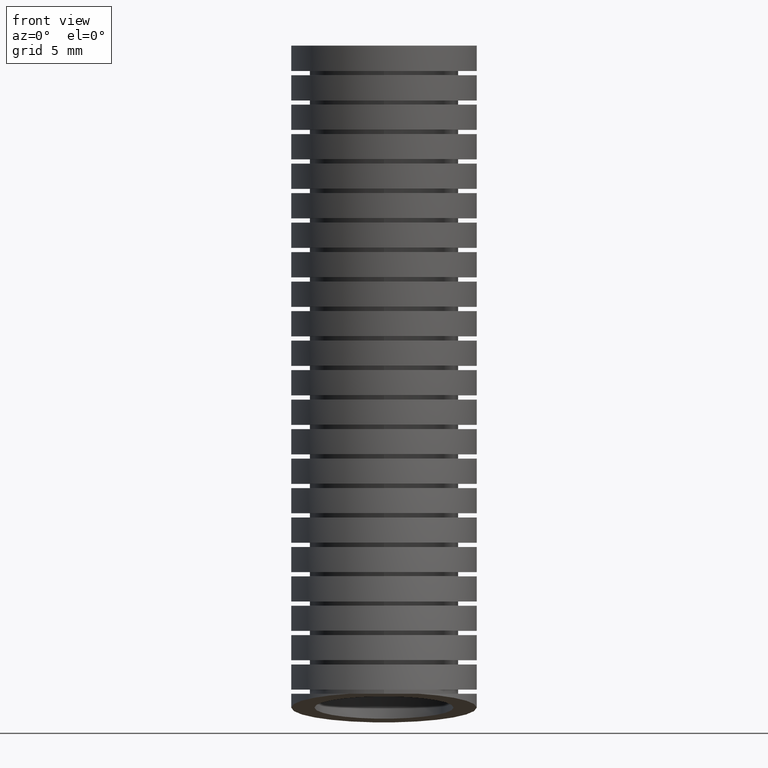
[diagram: clean part render]
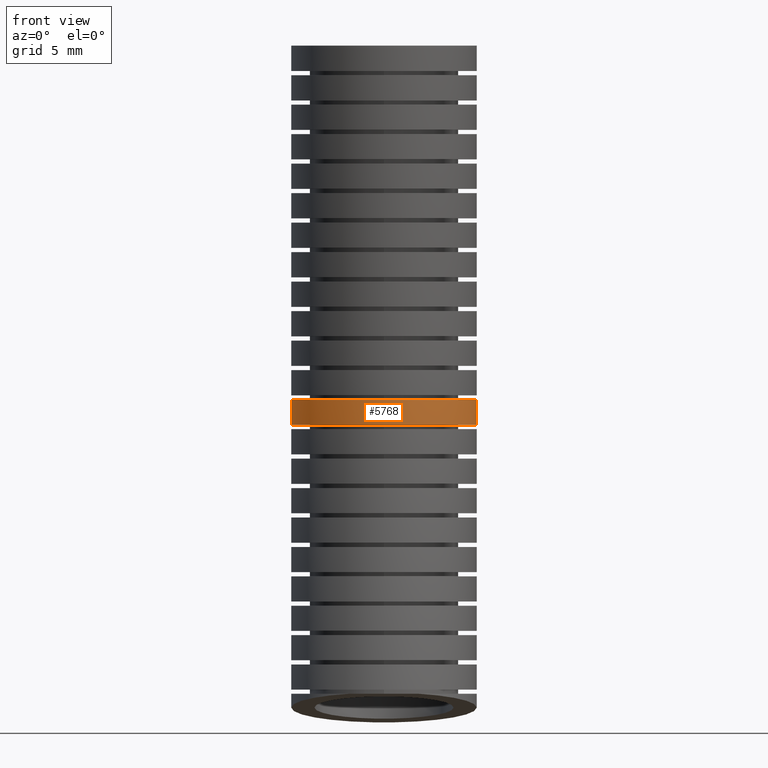
[diagram: same view with one face highlighted and labeled with its STEP entity id]
A machine part, front view. The second image highlights one B-rep face of the part: STEP entity #5768.
In plain terms, the highlighted face is a freeform B-spline surface patch.
Its self-contained STEP definition (entity closure, byte-faithful):
#5536 = ORIENTED_EDGE ( 'NONE', *, *, #5537, .T. ) ;
#5537 = EDGE_CURVE ( 'NONE', #5769, #5770, #6665, .T. ) ;
#5538 = ORIENTED_EDGE ( 'NONE', *, *, #5602, .F. ) ;
#5596 = EDGE_LOOP ( 'NONE', ( #5763, #5599, #5536, #5538 ) ) ;
#5598 = VERTEX_POINT ( 'NONE', #7152 ) ;
#5599 = ORIENTED_EDGE ( 'NONE', *, *, #5600, .T. ) ;
#5600 = EDGE_CURVE ( 'NONE', #5767, #5769, #7101, .T. ) ;
#5602 = EDGE_CURVE ( 'NONE', #5598, #5770, #7265, .T. ) ;
#5763 = ORIENTED_EDGE ( 'NONE', *, *, #5766, .T. ) ;
#5766 = EDGE_CURVE ( 'NONE', #5598, #5767, #9093, .T. ) ;
#5767 = VERTEX_POINT ( 'NONE', #9092 ) ;
#5768 = ADVANCED_FACE ( 'NONE', ( #9133 ), #9041, .T. ) ;
#5769 = VERTEX_POINT ( 'NONE', #9318 ) ;
#5770 = VERTEX_POINT ( 'NONE', #9317 ) ;
#6513 = CARTESIAN_POINT ( 'NONE',  ( -0.1908391727205746600, -0.08642029612144958000, -0.8995019102547113800 ) ) ;
#6514 = CARTESIAN_POINT ( 'NONE',  ( -0.1976465787443406300, -0.07375096096106040200, -0.8995019102547109300 ) ) ;
#6515 = CARTESIAN_POINT ( 'NONE',  ( -0.2087777214159124700, -0.04694139336656387400, -0.8995019102547110500 ) ) ;
#6516 = CARTESIAN_POINT ( 'NONE',  ( -0.2129374929820456700, -0.03320780768433455300, -0.8995019102547109300 ) ) ;
#6517 = CARTESIAN_POINT ( 'NONE',  ( -0.2185516004126545300, -0.005107863162842447700, -0.8995019102547111600 ) ) ;
#6518 = CARTESIAN_POINT ( 'NONE',  ( -0.2200000000000000600, 0.009381708051706686600, -0.8995019102547111600 ) ) ;
#6519 = CARTESIAN_POINT ( 'NONE',  ( -0.2200000000000000000, 0.02386124835216906300, -0.8995019102547111600 ) ) ;
#6524 = CARTESIAN_POINT ( 'NONE',  ( 0.2199999999999999700, 0.02386124834141227800, -0.8995019104416789300 ) ) ;
#6525 = CARTESIAN_POINT ( 'NONE',  ( 0.2199999999999999700, 0.009335042488400958600, -0.8995019104416789300 ) ) ;
#6526 = CARTESIAN_POINT ( 'NONE',  ( 0.2185540854276715500, -0.005086124097520516900, -0.8995019102547123800 ) ) ;
#6527 = CARTESIAN_POINT ( 'NONE',  ( 0.2129459420463962700, -0.03317480096830654300, -0.8995019102547126000 ) ) ;
#6528 = CARTESIAN_POINT ( 'NONE',  ( 0.2087652145117081800, -0.04697486230115539100, -0.8995019102547114900 ) ) ;
#6531 = CARTESIAN_POINT ( 'NONE',  ( 0.07085032347168560000, -0.1847085350548554300, -0.8995019102547110500 ) ) ;
#6532 = CARTESIAN_POINT ( 'NONE',  ( 0.05713245578302185400, -0.1888774132028441000, -0.8995019102547119300 ) ) ;
#6533 = CARTESIAN_POINT ( 'NONE',  ( 0.02872972691927452500, -0.1945232565066299100, -0.8995019102547117100 ) ) ;
#6534 = CARTESIAN_POINT ( 'NONE',  ( 0.01433739082891552700, -0.1959246846892287500, -0.8995019102547120400 ) ) ;
#6535 = CARTESIAN_POINT ( 'NONE',  ( -0.007142840114660905000, -0.1959263660618468500, -0.8995019102547120400 ) ) ;
#6536 = CARTESIAN_POINT ( 'NONE',  ( -0.01430553339018932800, -0.1955785595210073900, -0.8995019102547114900 ) ) ;
#6537 = CARTESIAN_POINT ( 'NONE',  ( -0.02863623993025464800, -0.1941745748405809300, -0.8995019102547117100 ) ) ;
#6538 = CARTESIAN_POINT ( 'NONE',  ( -0.03584388835235817500, -0.1931090619189149700, -0.8995019102547120400 ) ) ;
#6539 = CARTESIAN_POINT ( 'NONE',  ( -0.05710071395382855500, -0.1888838315426511800, -0.8995019102547120400 ) ) ;
#6540 = CARTESIAN_POINT ( 'NONE',  ( 0.1976441659385130800, -0.07375342193802907100, -0.8995019102547114900 ) ) ;
#6541 = CARTESIAN_POINT ( 'NONE',  ( 0.1908573820943851600, -0.08638968317247848500, -0.8995019102547119300 ) ) ;
#6542 = CARTESIAN_POINT ( 'NONE',  ( 0.1789017251322816400, -0.1042537917086575800, -0.8995019102547119300 ) ) ;
#6543 = CARTESIAN_POINT ( 'NONE',  ( 0.1746184241172244700, -0.1100254490438053000, -0.8995019102547114900 ) ) ;
#6544 = CARTESIAN_POINT ( 'NONE',  ( 0.1654400954681575200, -0.1211931160711812600, -0.8995019102547116000 ) ) ;
#6545 = CARTESIAN_POINT ( 'NONE',  ( 0.1605432179055268400, -0.1265831826717213900, -0.8995019102547117100 ) ) ;
#6546 = CARTESIAN_POINT ( 'NONE',  ( 0.1452575287904051300, -0.1418315545017988000, -0.8995019102547119300 ) ) ;
#6547 = CARTESIAN_POINT ( 'NONE',  ( 0.1341796732697694600, -0.1509051810582084900, -0.8995019102547113800 ) ) ;
#6548 = CARTESIAN_POINT ( 'NONE',  ( 0.1102542576823396800, -0.1668747853066037700, -0.8995019102547114900 ) ) ;
#6549 = CARTESIAN_POINT ( 'NONE',  ( 0.09734731283204464700, -0.1737575009706235900, -0.8995019102547110500 ) ) ;
#6665 = B_SPLINE_CURVE_WITH_KNOTS ( 'NONE', 3,
 ( #6519, #6518, #6517, #6516, #6515, #6514, #6513, #6675, #6674, #6673, #6672, #6671, #6670, #6669, #6668, #6667, #6539, #6538, #6537, #6536, #6535, #6534, #6533, #6532, #6531, #6549, #6548, #6547, #6546, #6545, #6544, #6543, #6542, #6541, #6540, #6528, #6527, #6526, #6525, #6524 ),
 .UNSPECIFIED., .F., .F.,
 ( 4, 2, 2, 2, 2, 2, 2, 2, 2, 2, 2, 2, 2, 2, 2, 2, 2, 2, 2, 4 ),
 ( 0.01745942032408949500, 0.01855060052160106800, 0.01964178071911264200, 0.02073296091662421600, 0.02127855101538000600, 0.02182414111413579300, 0.02291532131164737000, 0.02400650150915895100, 0.02509768170667053100, 0.02564327180542631800, 0.02618886190418210800, 0.02728004210169368900, 0.02837122229920527000, 0.02946240249671684700, 0.03055358269422842700, 0.03109917279298421800, 0.03164476289174000800, 0.03273594308925158900, 0.03382712328676316900, 0.03491830348427474300 ),
 .UNSPECIFIED. ) ;
#6667 = CARTESIAN_POINT ( 'NONE',  ( -0.07081188543121451400, -0.1847224059056946900, -0.8995019102547120400 ) ) ;
#6668 = CARTESIAN_POINT ( 'NONE',  ( -0.09733298570860519900, -0.1737654336145183200, -0.8995019102547117100 ) ) ;
#6669 = CARTESIAN_POINT ( 'NONE',  ( -0.1102518815458860100, -0.1668747548369425300, -0.8995019102547110500 ) ) ;
#6670 = CARTESIAN_POINT ( 'NONE',  ( -0.1341478153754296900, -0.1509280595554253800, -0.8995019102547111600 ) ) ;
#6671 = CARTESIAN_POINT ( 'NONE',  ( -0.1452315637308490600, -0.1418564883681085700, -0.8995019102547117100 ) ) ;
#6672 = CARTESIAN_POINT ( 'NONE',  ( -0.1605451077698319100, -0.1265817807976659700, -0.8995019102547120400 ) ) ;
#6673 = CARTESIAN_POINT ( 'NONE',  ( -0.1654482042918647700, -0.1211831434430037800, -0.8995019102547122700 ) ) ;
#6674 = CARTESIAN_POINT ( 'NONE',  ( -0.1746077039754614400, -0.1100385989446233400, -0.8995019102547123800 ) ) ;
#6675 = CARTESIAN_POINT ( 'NONE',  ( -0.1788865639006709800, -0.1042747381107451400, -0.8995019102547116000 ) ) ;
#7099 = CARTESIAN_POINT ( 'NONE',  ( -0.2200000000000000000, 0.02501423798455343000, -0.8532126102779287200 ) ) ;
#7100 = CARTESIAN_POINT ( 'NONE',  ( -0.2200000000000000000, 0.02526123312104128900, -0.8395213919809375600 ) ) ;
#7101 = B_SPLINE_CURVE_WITH_KNOTS ( 'NONE', 3,
 ( #7100, #7099, #7243, #7242, #7241 ),
 .UNSPECIFIED., .F., .F.,
 ( 4, 1, 4 ),
 ( 0.5338393789799112900, 0.5600000000000000500, 0.5720489863247842900 ),
 .UNSPECIFIED. ) ;
#7152 = CARTESIAN_POINT ( 'NONE',  ( 0.2199999999999999700, 0.02526123312796665200, -0.8395213917889967600 ) ) ;
#7241 = CARTESIAN_POINT ( 'NONE',  ( -0.2200000000000000000, 0.02386124835216906300, -0.8995019102547111600 ) ) ;
#7242 = CARTESIAN_POINT ( 'NONE',  ( -0.2200000000000000000, 0.02404257960003855800, -0.8931983281939248600 ) ) ;
#7243 = CARTESIAN_POINT ( 'NONE',  ( -0.2200000000000000000, 0.02458266239579632100, -0.8732073009364621500 ) ) ;
#7256 = CARTESIAN_POINT ( 'NONE',  ( 0.2199999999999999700, 0.02386124834141227800, -0.8995019104416789300 ) ) ;
#7257 = CARTESIAN_POINT ( 'NONE',  ( 0.2199999999999999500, 0.02404257959666810500, -0.8931983283186802900 ) ) ;
#7258 = CARTESIAN_POINT ( 'NONE',  ( 0.2199999999999999500, 0.02458266239617820000, -0.8732073009348697600 ) ) ;
#7259 = CARTESIAN_POINT ( 'NONE',  ( 0.2199999999999999500, 0.02501423798731593600, -0.8532126101499419900 ) ) ;
#7260 = CARTESIAN_POINT ( 'NONE',  ( 0.2199999999999999700, 0.02526123312796665200, -0.8395213917889967600 ) ) ;
#7265 = B_SPLINE_CURVE_WITH_KNOTS ( 'NONE', 3,
 ( #7260, #7259, #7258, #7257, #7256 ),
 .UNSPECIFIED., .F., .F.,
 ( 4, 1, 4 ),
 ( 0.5338393788576207800, 0.5600000000000000500, 0.5720489864440092600 ),
 .UNSPECIFIED. ) ;
#8952 = CARTESIAN_POINT ( 'NONE',  ( -0.2200000000000000600, -0.4643070821439249100, -1.499449603830806900 ) ) ;
#8953 = CARTESIAN_POINT ( 'NONE',  ( -0.2200000000000000600, -0.4452605421868002200, -1.318319795305659300 ) ) ;
#8983 = CARTESIAN_POINT ( 'NONE',  ( -0.2199999999999999700, -0.02999999999999996100, -1.569999999999999800 ) ) ;
#8984 = CARTESIAN_POINT ( 'NONE',  ( -0.2200000000000000000, -0.009606929841608527800, -1.380125810173523200 ) ) ;
#8985 = CARTESIAN_POINT ( 'NONE',  ( -0.2200000000000000000, 0.01505095857590816600, -1.150543086741312900 ) ) ;
#8986 = CARTESIAN_POINT ( 'NONE',  ( -0.2200000000000000000, 0.02865554522839109900, -0.7739593172595274900 ) ) ;
#8987 = CARTESIAN_POINT ( 'NONE',  ( -0.2199999999999999500, 0.02383978768935243700, -0.4406884739917595300 ) ) ;
#8988 = CARTESIAN_POINT ( 'NONE',  ( -0.2199999999999999500, 0.007946595896450831000, -0.1468961579972532000 ) ) ;
#8989 = CARTESIAN_POINT ( 'NONE',  ( -0.2199999999999999700, 2.694222958124176600E-017, 0.0000000000000000000 ) ) ;
#9041 =( BOUNDED_SURFACE ( )  B_SPLINE_SURFACE ( 3, 3, ( 
 ( #9211, #9210, #9120, #9119, #9118, #9117, #9116 ),
 ( #9115, #9114, #9113, #9112, #9111, #9110, #9109 ),
 ( #9108, #9107, #9106, #9105, #9104, #8953, #8952 ),
 ( #8989, #8988, #8987, #8986, #8985, #8984, #8983 ),
 ( #9409, #9295, #9249, #9232, #9319, #9352, #9302 ),
 ( #9263, #9408, #9330, #9329, #9252, #9251, #9250 ),
 ( #9231, #9230, #9229, #9306, #9305, #9304, #9303 ) ),
 .UNSPECIFIED., .F., .F., .T. ) 
 B_SPLINE_SURFACE_WITH_KNOTS ( ( 4, 3, 4 ),
 ( 4, 1, 1, 1, 4 ),
 ( 0.0000000000000000000, 0.5000000000000000000, 1.000000000000000000 ),
 ( 0.0000000000000000000, 0.2799999999999999700, 0.5600000000000000500, 0.6361022193888284900, 1.000000000000000000 ),
 .UNSPECIFIED. ) 
 GEOMETRIC_REPRESENTATION_ITEM ( )  RATIONAL_B_SPLINE_SURFACE ( (
 ( 1.000000000000000000, 1.000000000000000000, 1.000000000000000200, 0.9999999999999997800, 0.9999999999999997800, 1.000000000000000000, 1.000000000000000000),
 ( 0.3333333333333333100, 0.3333333333333333100, 0.3333333333333333700, 0.3333333333333333100, 0.3333333333333332600, 0.3333333333333333100, 0.3333333333333333100),
 ( 0.3333333333333333100, 0.3333333333333333100, 0.3333333333333333700, 0.3333333333333333100, 0.3333333333333332600, 0.3333333333333333100, 0.3333333333333333100),
 ( 1.000000000000000000, 1.000000000000000000, 1.000000000000000200, 0.9999999999999997800, 0.9999999999999997800, 1.000000000000000000, 1.000000000000000000),
 ( 0.3333333333333333100, 0.3333333333333333100, 0.3333333333333333700, 0.3333333333333333100, 0.3333333333333332600, 0.3333333333333333100, 0.3333333333333333100),
 ( 0.3333333333333333100, 0.3333333333333333100, 0.3333333333333333700, 0.3333333333333333100, 0.3333333333333332600, 0.3333333333333333100, 0.3333333333333333100),
 ( 1.000000000000000000, 1.000000000000000000, 1.000000000000000200, 0.9999999999999997800, 0.9999999999999997800, 1.000000000000000000, 1.000000000000000000) ) ) 
 REPRESENTATION_ITEM ( '' )  SURFACE ( )  );
#9092 = CARTESIAN_POINT ( 'NONE',  ( -0.2200000000000000000, 0.02526123312104128900, -0.8395213919809375600 ) ) ;
#9093 = B_SPLINE_CURVE_WITH_KNOTS ( 'NONE', 3,
 ( #9131, #9130, #9129, #9128, #9127, #9126, #9125, #9124, #9123, #9122, #9176, #9175, #9174, #9173, #9172, #9171, #9170, #9169, #9168, #9167, #9166, #9165, #9164, #9163, #9162, #9161, #9160, #9159, #9158, #9157, #9156, #9155, #9154, #9153, #9152, #9151, #9150, #9149, #9148, #9147, #9146, #9145 ),
 .UNSPECIFIED., .F., .F.,
 ( 4, 2, 2, 2, 2, 2, 2, 2, 2, 2, 2, 2, 2, 2, 2, 2, 2, 2, 2, 2, 4 ),
 ( 0.0000000000000000000, 0.001091154317266198600, 0.001636731475899297800, 0.002182308634532397100, 0.003273462951798595200, 0.004364617269064793300, 0.005455771586330991500, 0.006001348744964091400, 0.006546925903597190400, 0.007638080220863387700, 0.008729234538129584900, 0.009820388855395783100, 0.01091154317266198100, 0.01145712033129508100, 0.01200269748992818100, 0.01309385180719438100, 0.01418500612446058100, 0.01473058328309368100, 0.01527616044172678100, 0.01636731475899297700, 0.01745846907625917700 ),
 .UNSPECIFIED. ) ;
#9104 = CARTESIAN_POINT ( 'NONE',  ( -0.2200000000000000600, -0.4222307848547833300, -1.099310172281269500 ) ) ;
#9105 = CARTESIAN_POINT ( 'NONE',  ( -0.2199999999999999700, -0.4105113276930683100, -0.7453834242351884400 ) ) ;
#9106 = CARTESIAN_POINT ( 'NONE',  ( -0.2200000000000000300, -0.4163189932980856400, -0.4367596658269781200 ) ) ;
#9107 = CARTESIAN_POINT ( 'NONE',  ( -0.2200000000000000800, -0.4321063310993618100, -0.1455865552756593400 ) ) ;
#9108 = CARTESIAN_POINT ( 'NONE',  ( -0.2200000000000000600, -0.4399999999999999500, 0.0000000000000000000 ) ) ;
#9109 = CARTESIAN_POINT ( 'NONE',  ( 0.2199999999999999700, -0.4643070821439249100, -1.499449603830806900 ) ) ;
#9110 = CARTESIAN_POINT ( 'NONE',  ( 0.2199999999999999700, -0.4452605421868002200, -1.318319795305659300 ) ) ;
#9111 = CARTESIAN_POINT ( 'NONE',  ( 0.2200000000000000600, -0.4222307848547833300, -1.099310172281269500 ) ) ;
#9112 = CARTESIAN_POINT ( 'NONE',  ( 0.2199999999999999700, -0.4105113276930683100, -0.7453834242351884400 ) ) ;
#9113 = CARTESIAN_POINT ( 'NONE',  ( 0.2199999999999999700, -0.4163189932980856400, -0.4367596658269781200 ) ) ;
#9114 = CARTESIAN_POINT ( 'NONE',  ( 0.2199999999999999700, -0.4321063310993618100, -0.1455865552756593400 ) ) ;
#9115 = CARTESIAN_POINT ( 'NONE',  ( 0.2199999999999999700, -0.4399999999999999500, 0.0000000000000000000 ) ) ;
#9116 = CARTESIAN_POINT ( 'NONE',  ( 0.2199999999999999700, -0.02999999999999998800, -1.569999999999999800 ) ) ;
#9117 = CARTESIAN_POINT ( 'NONE',  ( 0.2200000000000000000, -0.009606929841608550400, -1.380125810173523200 ) ) ;
#9118 = CARTESIAN_POINT ( 'NONE',  ( 0.2200000000000000000, 0.01505095857590814400, -1.150543086741312900 ) ) ;
#9119 = CARTESIAN_POINT ( 'NONE',  ( 0.2200000000000000000, 0.02865554522839106700, -0.7739593172595274900 ) ) ;
#9120 = CARTESIAN_POINT ( 'NONE',  ( 0.2199999999999999500, 0.02383978768935241300, -0.4406884739917595300 ) ) ;
#9122 = CARTESIAN_POINT ( 'NONE',  ( 0.1749331560884686600, -0.1087323504054402400, -0.8395213919809376700 ) ) ;
#9123 = CARTESIAN_POINT ( 'NONE',  ( 0.1909158564245763400, -0.08484608171992089100, -0.8395213919809377800 ) ) ;
#9124 = CARTESIAN_POINT ( 'NONE',  ( 0.1976813301135954800, -0.07222360016833982700, -0.8395213919809371200 ) ) ;
#9125 = CARTESIAN_POINT ( 'NONE',  ( 0.2059738429909690700, -0.05226150096557686400, -0.8395213919809373400 ) ) ;
#9126 = CARTESIAN_POINT ( 'NONE',  ( 0.2084353811211901400, -0.04539821383497846100, -0.8395213919809382300 ) ) ;
#9127 = CARTESIAN_POINT ( 'NONE',  ( 0.2126296388030995100, -0.03158681137157494400, -0.8395213919809381100 ) ) ;
#9128 = CARTESIAN_POINT ( 'NONE',  ( 0.2143738702174100600, -0.02462099374468508500, -0.8395213919809381100 ) ) ;
#9129 = CARTESIAN_POINT ( 'NONE',  ( 0.2185714870594321100, -0.003547214494410107400, -0.8395213919809378900 ) ) ;
#9130 = CARTESIAN_POINT ( 'NONE',  ( 0.2199999999999999200, 0.01073533508230866200, -0.8395213917889965400 ) ) ;
#9131 = CARTESIAN_POINT ( 'NONE',  ( 0.2199999999999999700, 0.02526123312796665200, -0.8395213917889967600 ) ) ;
#9133 = FACE_OUTER_BOUND ( 'NONE', #5596, .T. ) ;
#9145 = CARTESIAN_POINT ( 'NONE',  ( -0.2200000000000000000, 0.02526123312104128900, -0.8395213919809375600 ) ) ;
#9146 = CARTESIAN_POINT ( 'NONE',  ( -0.2199999999999999700, 0.01091268824844730100, -0.8395213919809372300 ) ) ;
#9147 = CARTESIAN_POINT ( 'NONE',  ( -0.2185590500869312700, -0.003659191769682645700, -0.8395213919809382300 ) ) ;
#9148 = CARTESIAN_POINT ( 'NONE',  ( -0.2129289386281725800, -0.03182509639564631100, -0.8395213919809383400 ) ) ;
#9149 = CARTESIAN_POINT ( 'NONE',  ( -0.2087655044452928800, -0.04552892812960613500, -0.8395213919809378900 ) ) ;
#9150 = CARTESIAN_POINT ( 'NONE',  ( -0.2004731785587206800, -0.06550907618552077900, -0.8395213919809378900 ) ) ;
#9151 = CARTESIAN_POINT ( 'NONE',  ( -0.1973481284576978400, -0.07209855309919059600, -0.8395213919809382300 ) ) ;
#9152 = CARTESIAN_POINT ( 'NONE',  ( -0.1905319749103554000, -0.08480820496201174600, -0.8395213919809378900 ) ) ;
#9153 = CARTESIAN_POINT ( 'NONE',  ( -0.1868317659539429400, -0.09095802302167155200, -0.8395213919809376700 ) ) ;
#9154 = CARTESIAN_POINT ( 'NONE',  ( -0.1748731218122048000, -0.1088053515008756500, -0.8395213919809376700 ) ) ;
#9155 = CARTESIAN_POINT ( 'NONE',  ( -0.1657453126381016600, -0.1199263955409567200, -0.8395213919809377800 ) ) ;
#9156 = CARTESIAN_POINT ( 'NONE',  ( -0.1451964820281781100, -0.1404215232322831000, -0.8395213919809377800 ) ) ;
#9157 = CARTESIAN_POINT ( 'NONE',  ( -0.1340830512695597400, -0.1494965276270801800, -0.8395213919809385600 ) ) ;
#9158 = CARTESIAN_POINT ( 'NONE',  ( -0.1162027891476462300, -0.1614178461398635400, -0.8395213919809388900 ) ) ;
#9159 = CARTESIAN_POINT ( 'NONE',  ( -0.1100395255258587700, -0.1651076716097066600, -0.8395213919809382300 ) ) ;
#9160 = CARTESIAN_POINT ( 'NONE',  ( -0.09729685475683816400, -0.1719057444371526500, -0.8395213919809381100 ) ) ;
#9161 = CARTESIAN_POINT ( 'NONE',  ( -0.09070483936371934200, -0.1750143309245636700, -0.8395213919809382300 ) ) ;
#9162 = CARTESIAN_POINT ( 'NONE',  ( -0.07073494116697379200, -0.1832579782688534300, -0.8395213919809382300 ) ) ;
#9163 = CARTESIAN_POINT ( 'NONE',  ( -0.05702786131608674600, -0.1874019446685898100, -0.8395213919809383400 ) ) ;
#9164 = CARTESIAN_POINT ( 'NONE',  ( -0.02883120512441298200, -0.1930038974351354100, -0.8395213919809383400 ) ) ;
#9165 = CARTESIAN_POINT ( 'NONE',  ( -0.01426642721889520100, -0.1944308031523097300, -0.8395213919809382300 ) ) ;
#9166 = CARTESIAN_POINT ( 'NONE',  ( 0.01441339990541407600, -0.1944212369666936400, -0.8395213919809378900 ) ) ;
#9167 = CARTESIAN_POINT ( 'NONE',  ( 0.02867863139777381300, -0.1930299456268606600, -0.8395213919809377800 ) ) ;
#9168 = CARTESIAN_POINT ( 'NONE',  ( 0.05705576056049951900, -0.1874006474058727300, -0.8395213919809381100 ) ) ;
#9169 = CARTESIAN_POINT ( 'NONE',  ( 0.07091957746114215000, -0.1831897135289686000, -0.8395213919809378900 ) ) ;
#9170 = CARTESIAN_POINT ( 'NONE',  ( 0.09076986221072713700, -0.1749834648873636000, -0.8395213919809382300 ) ) ;
#9171 = CARTESIAN_POINT ( 'NONE',  ( 0.09725389805840339900, -0.1719259184723317400, -0.8395213919809378900 ) ) ;
#9172 = CARTESIAN_POINT ( 'NONE',  ( 0.1099525003329614000, -0.1651568135293193500, -0.8395213919809383400 ) ) ;
#9173 = CARTESIAN_POINT ( 'NONE',  ( 0.1162000195054555400, -0.1614221347261707600, -0.8395213919809376700 ) ) ;
#9174 = CARTESIAN_POINT ( 'NONE',  ( 0.1342435746178378100, -0.1493845862355836200, -0.8395213919809376700 ) ) ;
#9175 = CARTESIAN_POINT ( 'NONE',  ( 0.1453243223937240300, -0.1402950639719312600, -0.8395213919809383400 ) ) ;
#9176 = CARTESIAN_POINT ( 'NONE',  ( 0.1656335684294171200, -0.1200367998805037500, -0.8395213919809381100 ) ) ;
#9210 = CARTESIAN_POINT ( 'NONE',  ( 0.2199999999999999500, 0.007946595896450805000, -0.1468961579972532000 ) ) ;
#9211 = CARTESIAN_POINT ( 'NONE',  ( 0.2199999999999999700, 0.0000000000000000000, 0.0000000000000000000 ) ) ;
#9229 = CARTESIAN_POINT ( 'NONE',  ( 0.2199999999999999500, 0.02383978768935241300, -0.4406884739917595300 ) ) ;
#9230 = CARTESIAN_POINT ( 'NONE',  ( 0.2199999999999999500, 0.007946595896450805000, -0.1468961579972532000 ) ) ;
#9231 = CARTESIAN_POINT ( 'NONE',  ( 0.2199999999999999700, 0.0000000000000000000, 0.0000000000000000000 ) ) ;
#9232 = CARTESIAN_POINT ( 'NONE',  ( -0.2199999999999998900, 0.4678224181498505900, -0.8025352102838663200 ) ) ;
#9249 = CARTESIAN_POINT ( 'NONE',  ( -0.2199999999999998600, 0.4639985686767905100, -0.4446172821565409500 ) ) ;
#9250 = CARTESIAN_POINT ( 'NONE',  ( 0.2199999999999999700, 0.4043070821439249100, -1.640550396169192700 ) ) ;
#9251 = CARTESIAN_POINT ( 'NONE',  ( 0.2199999999999999700, 0.4260466825035831300, -1.441931825041386800 ) ) ;
#9252 = CARTESIAN_POINT ( 'NONE',  ( 0.2200000000000000600, 0.4523327020065995900, -1.201776001201356700 ) ) ;
#9263 = CARTESIAN_POINT ( 'NONE',  ( 0.2199999999999999700, 0.4399999999999999500, 0.0000000000000000000 ) ) ;
#9295 = CARTESIAN_POINT ( 'NONE',  ( -0.2199999999999998900, 0.4479995228922634700, -0.1482057607188469700 ) ) ;
#9302 = CARTESIAN_POINT ( 'NONE',  ( -0.2199999999999998900, 0.4043070821439249100, -1.640550396169192700 ) ) ;
#9303 = CARTESIAN_POINT ( 'NONE',  ( 0.2199999999999999700, -0.02999999999999998800, -1.569999999999999800 ) ) ;
#9304 = CARTESIAN_POINT ( 'NONE',  ( 0.2200000000000000000, -0.009606929841608550400, -1.380125810173523200 ) ) ;
#9305 = CARTESIAN_POINT ( 'NONE',  ( 0.2200000000000000000, 0.01505095857590814400, -1.150543086741312900 ) ) ;
#9306 = CARTESIAN_POINT ( 'NONE',  ( 0.2200000000000000000, 0.02865554522839106700, -0.7739593172595274900 ) ) ;
#9317 = CARTESIAN_POINT ( 'NONE',  ( 0.2199999999999999700, 0.02386124834141227800, -0.8995019104416789300 ) ) ;
#9318 = CARTESIAN_POINT ( 'NONE',  ( -0.2200000000000000000, 0.02386124835216906300, -0.8995019102547111600 ) ) ;
#9319 = CARTESIAN_POINT ( 'NONE',  ( -0.2199999999999999200, 0.4523327020065995900, -1.201776001201356700 ) ) ;
#9329 = CARTESIAN_POINT ( 'NONE',  ( 0.2199999999999999700, 0.4678224181498505900, -0.8025352102838663200 ) ) ;
#9330 = CARTESIAN_POINT ( 'NONE',  ( 0.2199999999999999700, 0.4639985686767905100, -0.4446172821565409500 ) ) ;
#9352 = CARTESIAN_POINT ( 'NONE',  ( -0.2199999999999998900, 0.4260466825035831300, -1.441931825041386800 ) ) ;
#9408 = CARTESIAN_POINT ( 'NONE',  ( 0.2199999999999999700, 0.4479995228922634700, -0.1482057607188469700 ) ) ;
#9409 = CARTESIAN_POINT ( 'NONE',  ( -0.2199999999999998900, 0.4399999999999999500, 0.0000000000000000000 ) ) ;